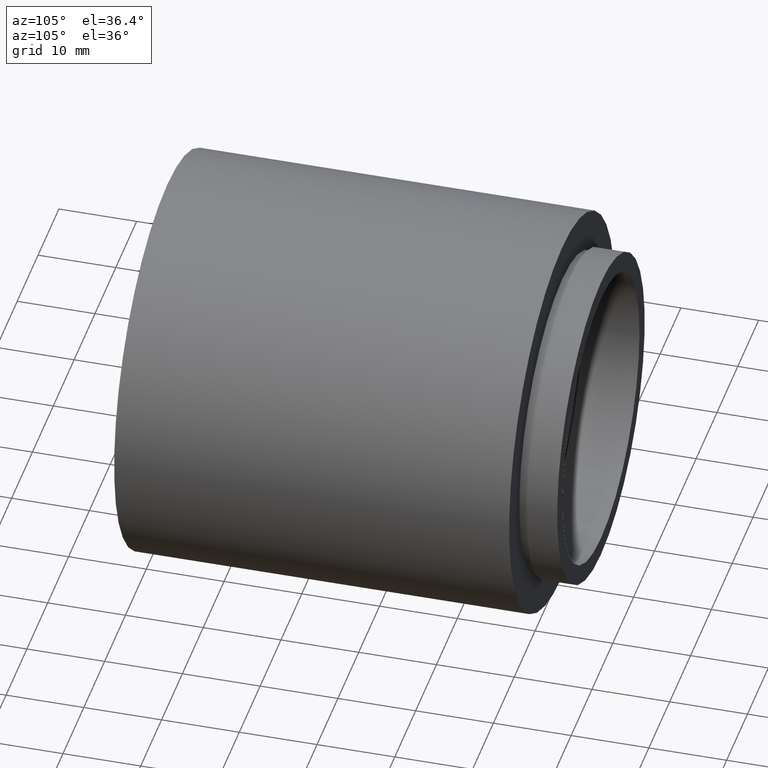
[diagram: clean part render]
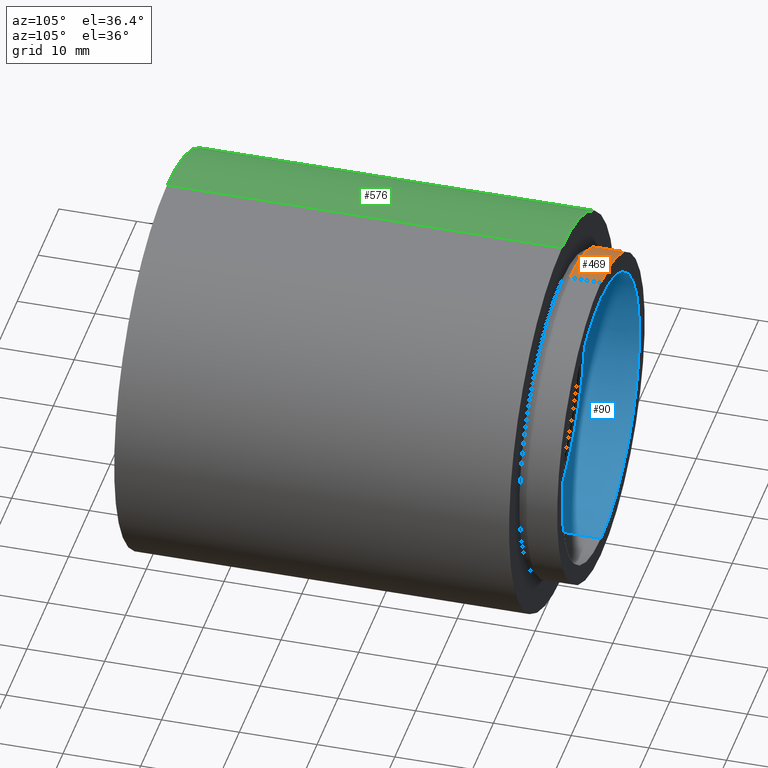
[diagram: same view with three faces highlighted in distinct colors, each labeled with its STEP entity id]
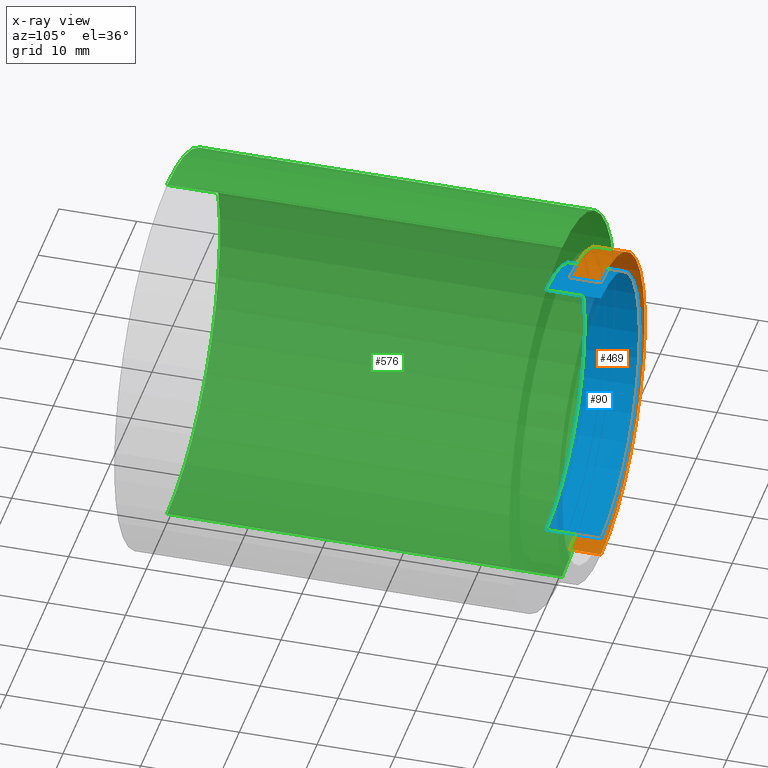
[diagram: x-ray of the same camera — body ghosted, the three highlighted faces saturated]
A machine part, auxiliary view with three faces highlighted in distinct colors.
The next image is the same camera in x-ray (body ghosted, the three faces saturated) — at least one of them is partly hidden behind the body in this view.
Their STEP definitions:

[orange] entity #469 — the highlighted cylindrical surface (partial cylindrical patch) has radius 21 mm, axis along (-0, 1, -0).
#2 = VERTEX_POINT ( 'NONE', #121 ) ;
#33 = ORIENTED_EDGE ( 'NONE', *, *, #373, .T. ) ;
#45 = EDGE_CURVE ( 'NONE', #444, #450, #503, .T. ) ;
#49 = DIRECTION ( 'NONE',  ( -0.0000000000000000000, 1.000000000000000000, -0.0000000000000000000 ) ) ;
#65 = FACE_OUTER_BOUND ( 'NONE', #295, .T. ) ;
#89 = CARTESIAN_POINT ( 'NONE',  ( 0.0000000000000000000, 55.79999999999999000, 0.0000000000000000000 ) ) ;
#121 = CARTESIAN_POINT ( 'NONE',  ( 0.0000000000000000000, 51.79999999999998300, 21.00000000000001400 ) ) ;
#158 = CYLINDRICAL_SURFACE ( 'NONE', #493, 21.00000000000001400 ) ;
#159 = DIRECTION ( 'NONE',  ( 0.0000000000000000000, 0.0000000000000000000, 1.000000000000000000 ) ) ;
#180 = ORIENTED_EDGE ( 'NONE', *, *, #45, .F. ) ;
#183 = CARTESIAN_POINT ( 'NONE',  ( 2.571758278209443600E-015, 161.3761669434274500, -21.00000000000001400 ) ) ;
#186 = AXIS2_PLACEMENT_3D ( 'NONE', #89, #203, #374 ) ;
#203 = DIRECTION ( 'NONE',  ( -0.0000000000000000000, 1.000000000000000000, -0.0000000000000000000 ) ) ;
#207 = CARTESIAN_POINT ( 'NONE',  ( 0.0000000000000000000, 51.79999999999998300, 0.0000000000000000000 ) ) ;
#208 = CARTESIAN_POINT ( 'NONE',  ( 2.571758278209443600E-015, 55.79999999999999000, -21.00000000000001400 ) ) ;
#221 = DIRECTION ( 'NONE',  ( -0.0000000000000000000, 1.000000000000000000, -0.0000000000000000000 ) ) ;
#242 = CIRCLE ( 'NONE', #186, 21.00000000000001400 ) ;
#269 = DIRECTION ( 'NONE',  ( -0.0000000000000000000, 1.000000000000000000, -0.0000000000000000000 ) ) ;
#287 = VERTEX_POINT ( 'NONE', #578 ) ;
#291 = LINE ( 'NONE', #362, #467 ) ;
#295 = EDGE_LOOP ( 'NONE', ( #180, #33, #494, #445 ) ) ;
#362 = CARTESIAN_POINT ( 'NONE',  ( 0.0000000000000000000, 161.3761669434274500, 21.00000000000001400 ) ) ;
#373 = EDGE_CURVE ( 'NONE', #444, #2, #619, .T. ) ;
#374 = DIRECTION ( 'NONE',  ( 0.0000000000000000000, 0.0000000000000000000, 1.000000000000000000 ) ) ;
#391 = VECTOR ( 'NONE', #269, 1000.000000000000000 ) ;
#403 = AXIS2_PLACEMENT_3D ( 'NONE', #207, #49, #159 ) ;
#410 = DIRECTION ( 'NONE',  ( 0.0000000000000000000, 0.0000000000000000000, 1.000000000000000000 ) ) ;
#444 = VERTEX_POINT ( 'NONE', #533 ) ;
#445 = ORIENTED_EDGE ( 'NONE', *, *, #535, .F. ) ;
#448 = DIRECTION ( 'NONE',  ( -0.0000000000000000000, 1.000000000000000000, -0.0000000000000000000 ) ) ;
#450 = VERTEX_POINT ( 'NONE', #208 ) ;
#467 = VECTOR ( 'NONE', #448, 1000.000000000000000 ) ;
#469 = ADVANCED_FACE ( 'NONE', ( #65 ), #158, .T. ) ;
#489 = EDGE_CURVE ( 'NONE', #2, #287, #291, .T. ) ;
#491 = CARTESIAN_POINT ( 'NONE',  ( 0.0000000000000000000, 161.3761669434274500, 0.0000000000000000000 ) ) ;
#493 = AXIS2_PLACEMENT_3D ( 'NONE', #491, #221, #410 ) ;
#494 = ORIENTED_EDGE ( 'NONE', *, *, #489, .T. ) ;
#503 = LINE ( 'NONE', #183, #391 ) ;
#533 = CARTESIAN_POINT ( 'NONE',  ( 2.571758278209443600E-015, 51.79999999999998300, -21.00000000000001400 ) ) ;
#535 = EDGE_CURVE ( 'NONE', #450, #287, #242, .T. ) ;
#578 = CARTESIAN_POINT ( 'NONE',  ( 0.0000000000000000000, 55.79999999999999000, 21.00000000000001400 ) ) ;
#619 = CIRCLE ( 'NONE', #403, 21.00000000000001400 ) ;

[blue] entity #90 — the highlighted cylindrical surface (partial cylindrical patch) has radius 18.5 mm, axis along (-0, 1, -0).
#10 = AXIS2_PLACEMENT_3D ( 'NONE', #438, #198, #152 ) ;
#46 = DIRECTION ( 'NONE',  ( -0.0000000000000000000, 1.000000000000000000, -0.0000000000000000000 ) ) ;
#48 = EDGE_CURVE ( 'NONE', #610, #565, #479, .T. ) ;
#59 = ORIENTED_EDGE ( 'NONE', *, *, #386, .T. ) ;
#68 = CARTESIAN_POINT ( 'NONE',  ( 0.0000000000000000000, 48.79999999999998300, 18.50000000000001100 ) ) ;
#69 = AXIS2_PLACEMENT_3D ( 'NONE', #138, #337, #472 ) ;
#79 = CARTESIAN_POINT ( 'NONE',  ( 0.0000000000000000000, 161.3761669434274500, 18.50000000000001100 ) ) ;
#90 = ADVANCED_FACE ( 'NONE', ( #463 ), #146, .F. ) ;
#108 = ORIENTED_EDGE ( 'NONE', *, *, #418, .T. ) ;
#110 = DIRECTION ( 'NONE',  ( -0.0000000000000000000, 1.000000000000000000, -0.0000000000000000000 ) ) ;
#111 = VERTEX_POINT ( 'NONE', #244 ) ;
#113 = EDGE_LOOP ( 'NONE', ( #227, #108, #59, #368 ) ) ;
#117 = VECTOR ( 'NONE', #110, 1000.000000000000000 ) ;
#138 = CARTESIAN_POINT ( 'NONE',  ( 0.0000000000000000000, 161.3761669434274500, 0.0000000000000000000 ) ) ;
#146 = CYLINDRICAL_SURFACE ( 'NONE', #69, 18.50000000000001100 ) ;
#152 = DIRECTION ( 'NONE',  ( 0.0000000000000000000, 0.0000000000000000000, 1.000000000000000000 ) ) ;
#198 = DIRECTION ( 'NONE',  ( -0.0000000000000000000, 1.000000000000000000, -0.0000000000000000000 ) ) ;
#227 = ORIENTED_EDGE ( 'NONE', *, *, #276, .F. ) ;
#244 = CARTESIAN_POINT ( 'NONE',  ( 2.265596578422604600E-015, 48.79999999999998300, -18.50000000000001100 ) ) ;
#276 = EDGE_CURVE ( 'NONE', #111, #610, #498, .T. ) ;
#304 = CARTESIAN_POINT ( 'NONE',  ( 0.0000000000000000000, 55.79999999999999000, 0.0000000000000000000 ) ) ;
#321 = CARTESIAN_POINT ( 'NONE',  ( 2.265596578422604600E-015, 55.79999999999999000, -18.50000000000001100 ) ) ;
#337 = DIRECTION ( 'NONE',  ( -0.0000000000000000000, 1.000000000000000000, -0.0000000000000000000 ) ) ;
#357 = CARTESIAN_POINT ( 'NONE',  ( 2.265596578422604600E-015, 161.3761669434274500, -18.50000000000001100 ) ) ;
#368 = ORIENTED_EDGE ( 'NONE', *, *, #48, .F. ) ;
#386 = EDGE_CURVE ( 'NONE', #611, #565, #586, .T. ) ;
#399 = DIRECTION ( 'NONE',  ( 0.0000000000000000000, 0.0000000000000000000, 1.000000000000000000 ) ) ;
#418 = EDGE_CURVE ( 'NONE', #111, #611, #492, .T. ) ;
#421 = CARTESIAN_POINT ( 'NONE',  ( 0.0000000000000000000, 55.79999999999999000, 18.50000000000001100 ) ) ;
#432 = AXIS2_PLACEMENT_3D ( 'NONE', #304, #46, #399 ) ;
#438 = CARTESIAN_POINT ( 'NONE',  ( 0.0000000000000000000, 48.79999999999998300, 0.0000000000000000000 ) ) ;
#463 = FACE_OUTER_BOUND ( 'NONE', #113, .T. ) ;
#472 = DIRECTION ( 'NONE',  ( 0.0000000000000000000, 0.0000000000000000000, 1.000000000000000000 ) ) ;
#479 = LINE ( 'NONE', #79, #590 ) ;
#492 = LINE ( 'NONE', #357, #117 ) ;
#498 = CIRCLE ( 'NONE', #10, 18.50000000000001100 ) ;
#565 = VERTEX_POINT ( 'NONE', #421 ) ;
#586 = CIRCLE ( 'NONE', #432, 18.50000000000001100 ) ;
#590 = VECTOR ( 'NONE', #594, 1000.000000000000000 ) ;
#594 = DIRECTION ( 'NONE',  ( -0.0000000000000000000, 1.000000000000000000, -0.0000000000000000000 ) ) ;
#610 = VERTEX_POINT ( 'NONE', #68 ) ;
#611 = VERTEX_POINT ( 'NONE', #321 ) ;

[green] entity #576 — the highlighted cylindrical surface (partial cylindrical patch) has radius 25.4 mm, axis along (-0, 1, -0).
#5 = LINE ( 'NONE', #564, #296 ) ;
#20 = CYLINDRICAL_SURFACE ( 'NONE', #346, 25.40000000000001600 ) ;
#23 = DIRECTION ( 'NONE',  ( -0.0000000000000000000, 1.000000000000000000, -0.0000000000000000000 ) ) ;
#26 = VERTEX_POINT ( 'NONE', #278 ) ;
#34 = ORIENTED_EDGE ( 'NONE', *, *, #191, .T. ) ;
#74 = VECTOR ( 'NONE', #254, 1000.000000000000000 ) ;
#82 = AXIS2_PLACEMENT_3D ( 'NONE', #332, #23, #286 ) ;
#87 = AXIS2_PLACEMENT_3D ( 'NONE', #437, #347, #566 ) ;
#131 = EDGE_CURVE ( 'NONE', #26, #338, #5, .T. ) ;
#173 = CIRCLE ( 'NONE', #82, 25.40000000000002000 ) ;
#182 = DIRECTION ( 'NONE',  ( -0.0000000000000000000, 1.000000000000000000, -0.0000000000000000000 ) ) ;
#191 = EDGE_CURVE ( 'NONE', #196, #26, #173, .T. ) ;
#196 = VERTEX_POINT ( 'NONE', #607 ) ;
#235 = DIRECTION ( 'NONE',  ( 0.0000000000000000000, 0.0000000000000000000, 1.000000000000000000 ) ) ;
#253 = CIRCLE ( 'NONE', #87, 25.40000000000001300 ) ;
#254 = DIRECTION ( 'NONE',  ( -0.0000000000000000000, 1.000000000000000000, -0.0000000000000000000 ) ) ;
#258 = EDGE_CURVE ( 'NONE', #196, #623, #415, .T. ) ;
#278 = CARTESIAN_POINT ( 'NONE',  ( 0.0000000000000000000, -2.775557561562891400E-014, 25.40000000000002000 ) ) ;
#286 = DIRECTION ( 'NONE',  ( 0.0000000000000000000, 0.0000000000000000000, 1.000000000000000000 ) ) ;
#296 = VECTOR ( 'NONE', #427, 1000.000000000000000 ) ;
#299 = EDGE_LOOP ( 'NONE', ( #495, #34, #413, #331 ) ) ;
#326 = CARTESIAN_POINT ( 'NONE',  ( 3.110602869834278800E-015, 50.79999999999998300, -25.40000000000001300 ) ) ;
#329 = EDGE_CURVE ( 'NONE', #623, #338, #253, .T. ) ;
#331 = ORIENTED_EDGE ( 'NONE', *, *, #329, .F. ) ;
#332 = CARTESIAN_POINT ( 'NONE',  ( 0.0000000000000000000, -2.775557561562891400E-014, 0.0000000000000000000 ) ) ;
#338 = VERTEX_POINT ( 'NONE', #620 ) ;
#346 = AXIS2_PLACEMENT_3D ( 'NONE', #426, #182, #235 ) ;
#347 = DIRECTION ( 'NONE',  ( -0.0000000000000000000, 1.000000000000000000, -0.0000000000000000000 ) ) ;
#413 = ORIENTED_EDGE ( 'NONE', *, *, #131, .T. ) ;
#415 = LINE ( 'NONE', #525, #74 ) ;
#426 = CARTESIAN_POINT ( 'NONE',  ( 0.0000000000000000000, 161.3761669434274500, 0.0000000000000000000 ) ) ;
#427 = DIRECTION ( 'NONE',  ( -0.0000000000000000000, 1.000000000000000000, -0.0000000000000000000 ) ) ;
#437 = CARTESIAN_POINT ( 'NONE',  ( 0.0000000000000000000, 50.79999999999998300, 0.0000000000000000000 ) ) ;
#495 = ORIENTED_EDGE ( 'NONE', *, *, #258, .F. ) ;
#525 = CARTESIAN_POINT ( 'NONE',  ( 3.110602869834278800E-015, 161.3761669434274500, -25.40000000000001600 ) ) ;
#532 = FACE_OUTER_BOUND ( 'NONE', #299, .T. ) ;
#564 = CARTESIAN_POINT ( 'NONE',  ( 0.0000000000000000000, 161.3761669434274500, 25.40000000000001600 ) ) ;
#566 = DIRECTION ( 'NONE',  ( 0.0000000000000000000, 0.0000000000000000000, 1.000000000000000000 ) ) ;
#576 = ADVANCED_FACE ( 'NONE', ( #532 ), #20, .T. ) ;
#607 = CARTESIAN_POINT ( 'NONE',  ( 3.110602869834279600E-015, -2.775557561562891400E-014, -25.40000000000002300 ) ) ;
#620 = CARTESIAN_POINT ( 'NONE',  ( 0.0000000000000000000, 50.79999999999998300, 25.40000000000001300 ) ) ;
#623 = VERTEX_POINT ( 'NONE', #326 ) ;